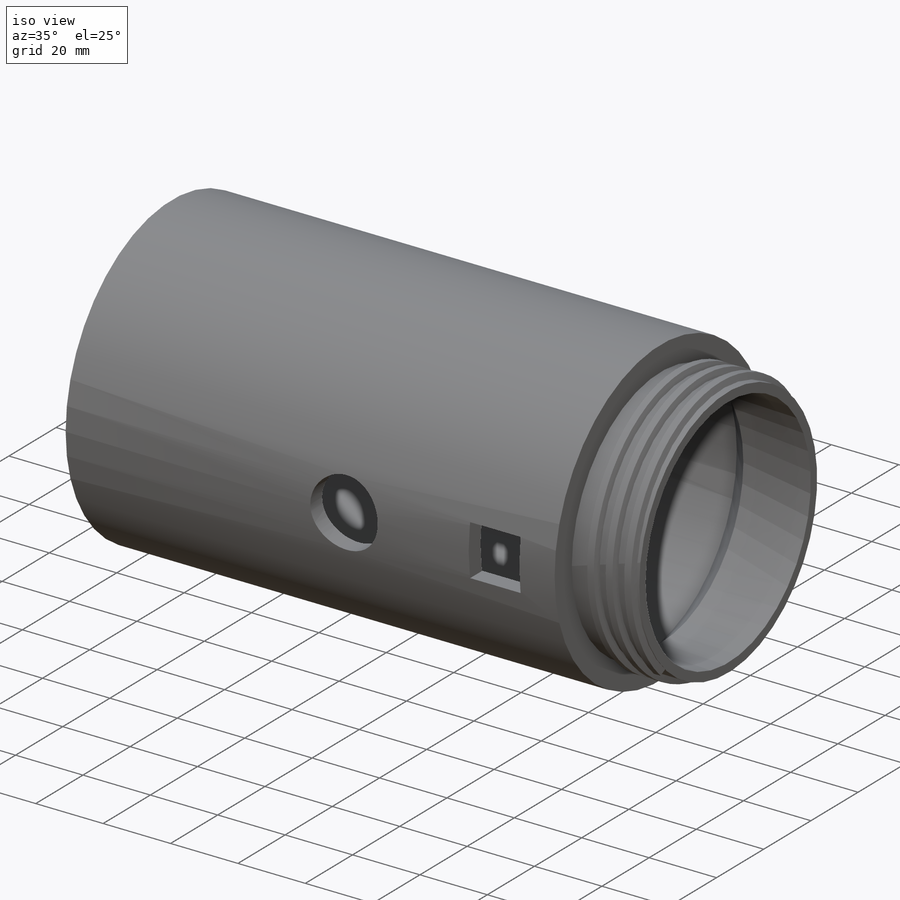
[diagram: iso view]
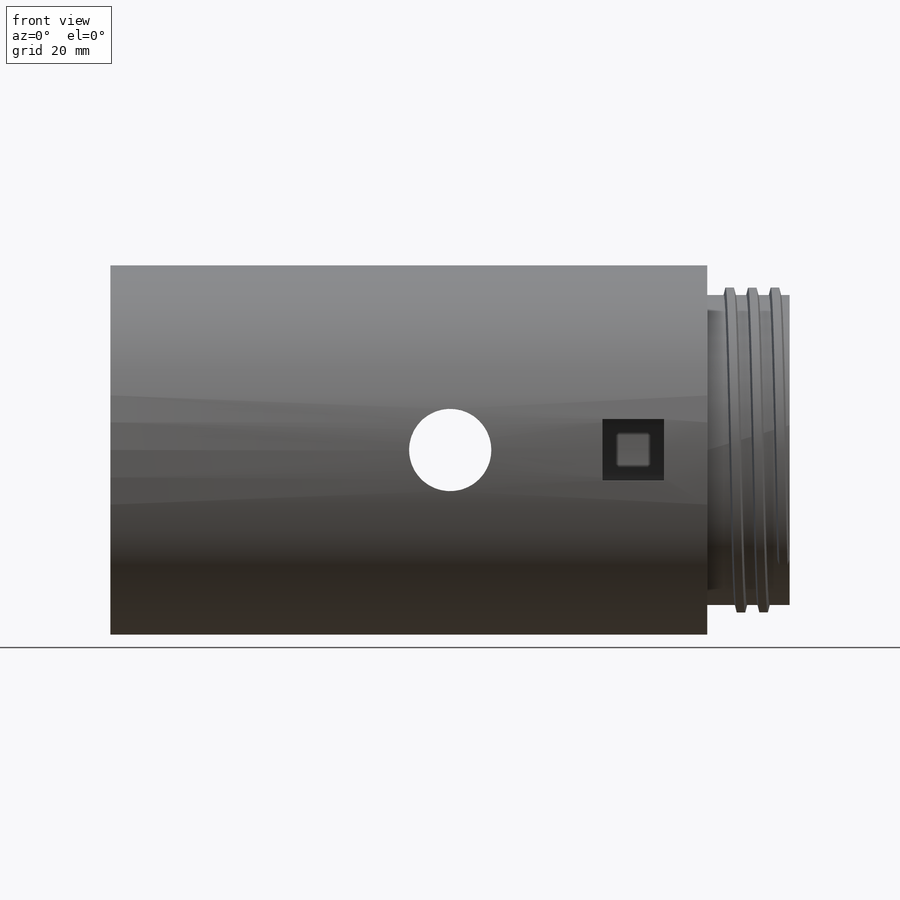
[diagram: front view]
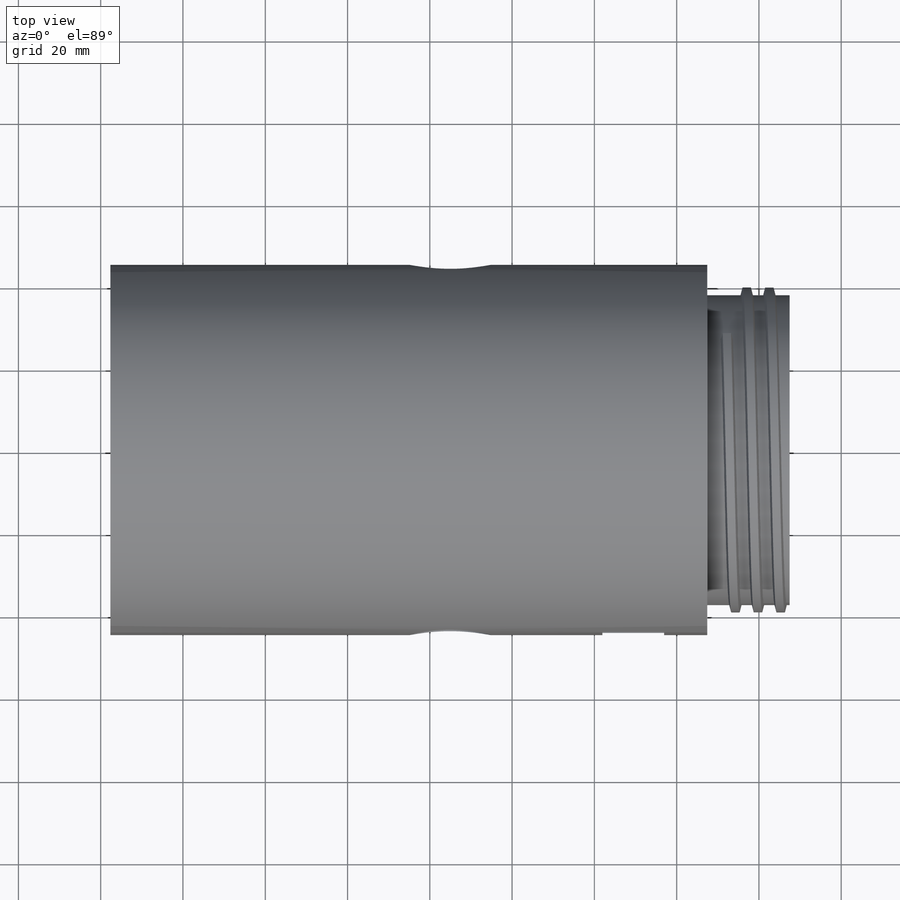
[diagram: top view]
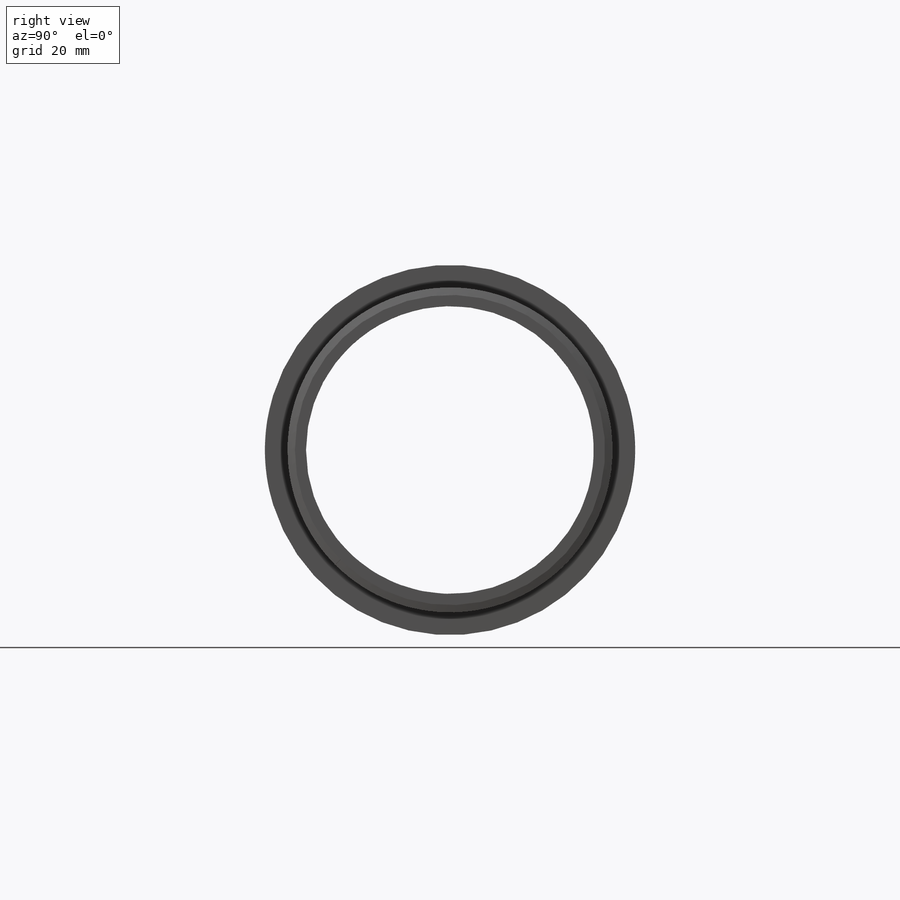
[diagram: right view]
SOLIDWORKS PART (.sldprt)
format: sldprt  version: not decoded by parser v0  size: 672,256 bytes
history: native  units: mm
features: plane x10, sketch x9, cut_extrude x3, helix x2, sweep x2, move_body x2, material x1, revolve x1, delete_body x1, extrude x1 (+9 scaffold rows collapsed)
feature tree (41):
  scaffold x9  (default folders/planes/origin — collapsed)
  material  "材质 <未指定>"
  plane  "前视基准面"
  plane  "上视基准面"
  plane  "右视基准面"
  sketch  "草图3"  dims[c1.D1=5.0mm c1.D2=85.0mm c1.D3=60.0mm c2.D2=40.0mm c2.D3=40.0mm c2.D6=0.9906mm c3.D2=115.0mm c3.D6=55.0mm c3.D4=70.0mm c4.D2=30.0mm c4.D8=~147.233364mm c4.D5=~60.298496mm c5.D5=~0.013095deg c6.D5=~60.298496mm c7.D5=~0.013095deg c8.D5=~48.820923mm c8.D7=55.0mm c9.D7=~179.986905deg c10.D7=55.0mm c11.D7=~0.013095deg c12.D7=40.0mm c12.D8=55.0mm c12.D6=5.0mm c13.D8=20.0mm c13.D9=5.0mm c14.D8=20.0mm c14.D9=5.0mm c15.D8=20.0mm c15.D9=5.0mm c15.D10=132.0mm c15.D11=40.0mm c15.D12=100.0mm c15.D2=5.0mm c15.D3=20.0mm c16.D8=37.7mm c16.D9=20.0mm c16.D10=2.7mm c16.D4=5.0mm c16.D5=5.0mm c16.D7=5.0mm c16.D2=5.0mm c17.D5=5.0mm c17.D2=5.0mm c18.D5=5.0mm]
  revolve  "旋转2"  Angle=360deg
  delete_body  "实体-删除1"
  plane  "基准面29"  Offset=1.5mm
  sketch  "草图49"  dims[D1=37.7mm]
  helix  "螺旋线/涡状线7"  Pitch=13.75mm
  plane  "基准面30"
  sketch  "草图50"  dims[D1=2.0mm]
  sweep  "扫描6"
  plane  "基准面31"  Offset=1.5mm
  sketch  "草图51"  dims[D1=40.0mm]
  helix  "螺旋线/涡状线8"  Pitch=19.25mm
  plane  "基准面32"
  sketch  "草图52"  dims[D1=2.0mm]
  sweep  "扫描7"
  plane  "基准面33"
  sketch  "草图54"  dims[c1.D1=~17.764905mm c1.D2=15.0mm c2.D1=62.5mm]
  cut_extrude  "切除-拉伸1"  Depth=60mm
  sketch  "草图55"  dims[c1.D2=~4.029469mm c1.D1=18.0mm c2.D2=~7.557088mm c3.D2=270.0deg c3.D3=7.0mm c4.D2=7.0mm c4.D3=7.0mm]
  cut_extrude  "切除-拉伸2"  Depth=50mm
  plane  "基准面34"  Offset=45mm
  sketch  "草图58"  dims[D1=15.0mm D2=15.0mm]
  cut_extrude  "切除-拉伸4"  Depth=0.001mm
  move_body  "实体-移动/复制1"
  plane  "基准面35"
  sketch  "草图59"
  extrude  "凸台-拉伸1"  Depth=30mm
  move_body  "实体-移动/复制2"
decode coverage: 15 of 21 modeling features carry decoded parameters
note: ~ marks probable driven/reference dimensions
note: suppression state not decoded; provenance and decode notes live in map.json
